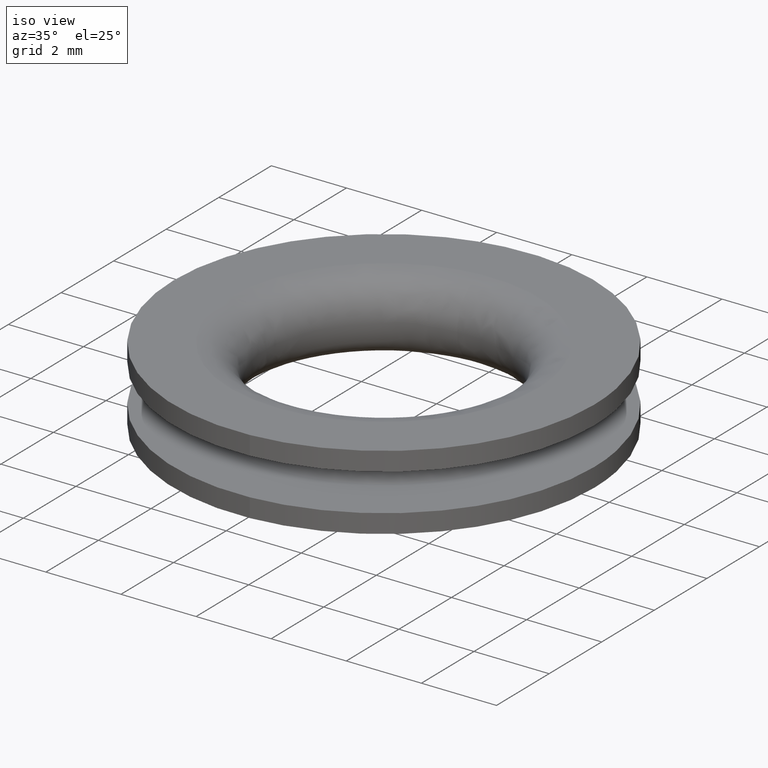
[diagram: clean part render]
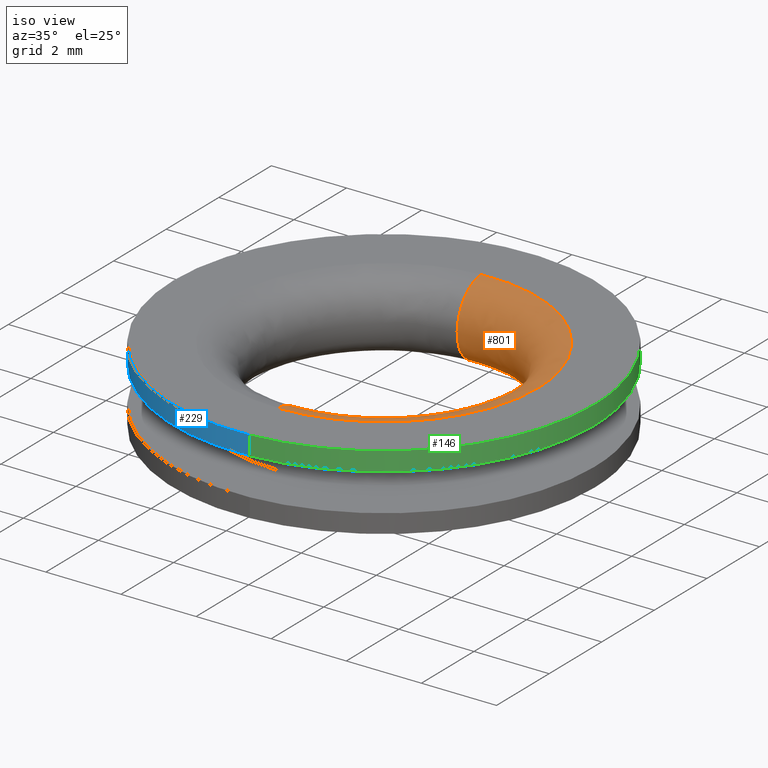
[diagram: same view with three faces highlighted in distinct colors, each labeled with its STEP entity id]
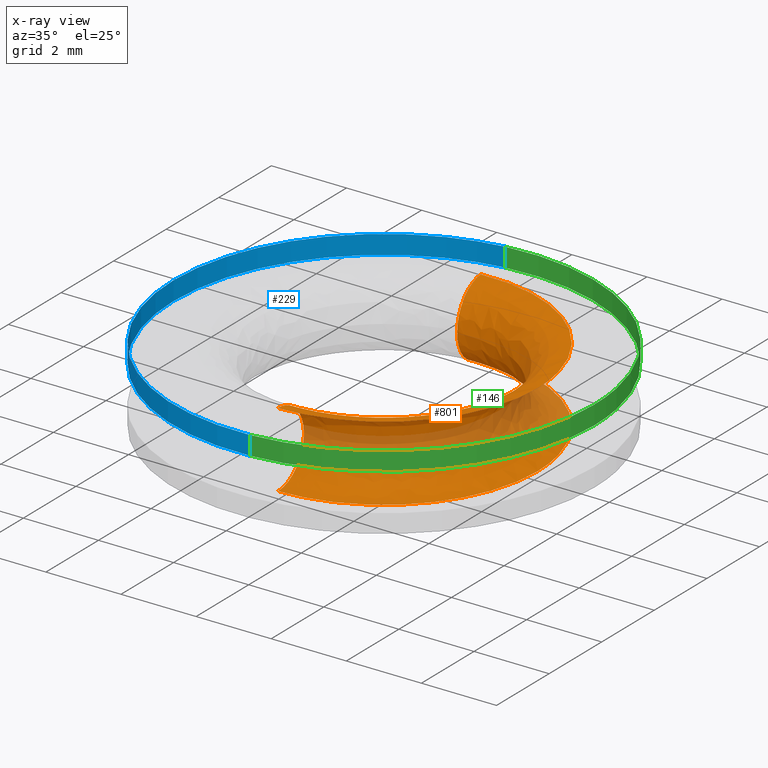
[diagram: x-ray of the same camera — body ghosted, the three highlighted faces saturated]
A machine part, iso view with three faces highlighted in distinct colors.
The next image is the same camera in x-ray (body ghosted, the three faces saturated) — at least one of them is partly hidden behind the body in this view.
Their STEP definitions:

[orange] entity #801 — the highlighted face is a freeform B-spline surface patch.
#658=CARTESIAN_POINT('',(-0.295804236483371,4.231616623863549,0.010125149930220));
#659=CARTESIAN_POINT('',(-0.174697303599710,4.240082405856291,0.010125149930220));
#660=CARTESIAN_POINT('',(-0.053304423413721,4.241607954081135,0.010125149930220));
#661=CARTESIAN_POINT('',(4.188303530667414,4.294912377494857,0.010125149930220));
#662=CARTESIAN_POINT('',(4.241607954081135,0.053304423413722,0.010125149930220));
#663=CARTESIAN_POINT('',(4.294912377494857,-4.188303530667414,0.010125149930220));
#664=CARTESIAN_POINT('',(0.053304423413718,-4.241607954081135,0.010125149930220));
#665=CARTESIAN_POINT('',(-0.216172909213191,3.092453600835798,-0.153623490866646));
#666=CARTESIAN_POINT('',(-0.127668301170435,3.098640370653203,-0.153623490866646));
#667=CARTESIAN_POINT('',(-0.038954723638394,3.099755237031830,-0.153623490866646));
#668=CARTESIAN_POINT('',(3.060800513393434,3.138709960670223,-0.153623490866646));
#669=CARTESIAN_POINT('',(3.099755237031830,0.038954723638394,-0.153623490866646));
#670=CARTESIAN_POINT('',(3.138709960670223,-3.060800513393434,-0.153623490866646));
#671=CARTESIAN_POINT('',(0.038954723638392,-3.099755237031830,-0.153623490866646));
#672=CARTESIAN_POINT('',(-0.216172909213191,3.092453600835801,1.000000000000000));
#673=CARTESIAN_POINT('',(-0.127668301170435,3.098640370653204,1.000000000000000));
#674=CARTESIAN_POINT('',(-0.038954723638394,3.099755237031829,1.000000000000000));
#675=CARTESIAN_POINT('',(3.060800513393435,3.138709960670223,1.000000000000000));
#676=CARTESIAN_POINT('',(3.099755237031829,0.038954723638394,1.000000000000000));
#677=CARTESIAN_POINT('',(3.138709960670223,-3.060800513393435,1.000000000000000));
#678=CARTESIAN_POINT('',(0.038954723638392,-3.099755237031829,1.000000000000000));
#679=CARTESIAN_POINT('',(-0.216172909213191,3.092453600835800,2.153623301951463));
#680=CARTESIAN_POINT('',(-0.127668301170435,3.098640370653203,2.153623301951462));
#681=CARTESIAN_POINT('',(-0.038954723638394,3.099755237031829,2.153623301951463));
#682=CARTESIAN_POINT('',(3.060800513393434,3.138709960670224,2.153623301951463));
#683=CARTESIAN_POINT('',(3.099755237031829,0.038954723638394,2.153623301951463));
#684=CARTESIAN_POINT('',(3.138709960670224,-3.060800513393434,2.153623301951463));
#685=CARTESIAN_POINT('',(0.038954723638392,-3.099755237031829,2.153623301951463));
#686=CARTESIAN_POINT('',(-0.295804225294069,4.231616463795408,1.989874873078713));
#687=CARTESIAN_POINT('',(-0.174697296991486,4.240082245467917,1.989874873078713));
#688=CARTESIAN_POINT('',(-0.053304421397390,4.241607793635057,1.989874873078713));
#689=CARTESIAN_POINT('',(4.188303372237666,4.294912215032449,1.989874873078713));
#690=CARTESIAN_POINT('',(4.241607793635057,0.053304421397391,1.989874873078713));
#691=CARTESIAN_POINT('',(4.294912215032449,-4.188303372237666,1.989874873078713));
#692=CARTESIAN_POINT('',(0.053304421397387,-4.241607793635057,1.989874873078713));
#700=(BOUNDED_SURFACE()B_SPLINE_SURFACE(2,2,((#658,#665,#672,#679,#686),(#659,#666,#673,#680,#687),(#660,#667,#674,#681,#688),(#661,#668,#675,#682,#689),(#662,#669,#676,#683,#690),(#663,#670,#677,#684,#691),(#664,#671,#678,#685,#692)),.UNSPECIFIED.,.F.,.F.,.U.)B_SPLINE_SURFACE_WITH_KNOTS((3,2,2,3),(3,2,3),(0.0,0.281130975369515,7.309412062298550,14.337693149227590),(0.0,1.826255915945001,3.652511637411089),.UNSPECIFIED.)GEOMETRIC_REPRESENTATION_ITEM()RATIONAL_B_SPLINE_SURFACE(((0.963494662627151,0.635663733925537,0.977505821353428,0.635663770328473,0.963494592805397),(0.974118629750981,0.642672875618779,0.988284282420452,0.642672912423112,0.974118559159338),(0.985666419145332,0.650291507262242,1.0,0.650291544502876,0.985666347716854),(0.696971408965526,0.459825534533153,0.707106781186548,0.459825560866257,0.696971358457965),(0.985666419145332,0.650291507262242,1.0,0.650291544502876,0.985666347716854),(0.696971408965526,0.459825534533153,0.707106781186548,0.459825560866257,0.696971358457965),(0.985666419145332,0.650291507262242,1.0,0.650291544502876,0.985666347716854)))REPRESENTATION_ITEM('')SURFACE());
#701=CARTESIAN_POINT('',(-0.285905240904226,4.090019318950484,5.493328E-016));
#702=VERTEX_POINT('',#701);
#703=CARTESIAN_POINT('',(4.100000000000001,0.0,0.0));
#704=VERTEX_POINT('',#703);
#705=CARTESIAN_POINT('',(-0.285905240904226,4.090019318950483,5.493328E-016));
#706=CARTESIAN_POINT('',(-0.143126828511218,4.100000000000001,0.0));
#707=CARTESIAN_POINT('',(0.0,4.100000000000001,0.0));
#708=CARTESIAN_POINT('',(4.100000000000001,4.100000000000001,0.0));
#709=CARTESIAN_POINT('',(4.100000000000001,0.0,0.0));
#717=(BOUNDED_CURVE()B_SPLINE_CURVE(2,(#705,#706,#707,#708,#709),.UNSPECIFIED.,.F.,.U.)B_SPLINE_CURVE_WITH_KNOTS((3,2,3),(0.237833732333640,0.250000000000000,0.500000000000000),.UNSPECIFIED.)CURVE()GEOMETRIC_REPRESENTATION_ITEM()RATIONAL_B_SPLINE_CURVE((0.972879973254873,0.985746330809015,1.0,0.707106781186547,1.0))REPRESENTATION_ITEM(''));
#718=EDGE_CURVE('',#702,#704,#717,.T.);
#719=ORIENTED_EDGE('',*,*,#718,.T.);
#720=CARTESIAN_POINT('',(0.051518769026480,-4.099674319610783,3.946466E-012));
#721=VERTEX_POINT('',#720);
#722=CARTESIAN_POINT('',(4.100000000000001,0.0,0.0));
#723=CARTESIAN_POINT('',(4.099999987519053,-4.048799864677521,1.973233E-012));
#724=CARTESIAN_POINT('',(0.051518769026480,-4.099674319610783,3.946466E-012));
#732=(BOUNDED_CURVE()B_SPLINE_CURVE(2,(#722,#723,#724),.UNSPECIFIED.,.F.,.U.)B_SPLINE_CURVE_WITH_KNOTS((3,3),(0.500000000000000,0.747784380410366),.UNSPECIFIED.)CURVE()GEOMETRIC_REPRESENTATION_ITEM()RATIONAL_B_SPLINE_CURVE((1.0,0.709702540999643,0.994854490104144))REPRESENTATION_ITEM(''));
#733=EDGE_CURVE('',#704,#721,#732,.T.);
#734=ORIENTED_EDGE('',*,*,#733,.T.);
#735=CARTESIAN_POINT('',(0.051520763526235,-4.099676281222010,2.0));
#736=VERTEX_POINT('',#735);
#737=CARTESIAN_POINT('',(0.051518769026480,-4.099674319610783,3.946466E-012));
#738=CARTESIAN_POINT('',(0.038952754106957,-3.099755261782994,0.000001986532888));
#739=CARTESIAN_POINT('',(0.038953738873623,-3.099755249414191,1.000000000000986));
#740=CARTESIAN_POINT('',(0.038954723642245,-3.099755237045362,1.999999999972842));
#741=CARTESIAN_POINT('',(0.051520763526235,-4.099676281222010,2.000000000000000));
#749=(BOUNDED_CURVE()B_SPLINE_CURVE(2,(#737,#738,#739,#740,#741),.UNSPECIFIED.,.F.,.U.)B_SPLINE_CURVE_WITH_KNOTS((3,2,3),(-3.781080124178481,-2.0,-0.218917462625159),.UNSPECIFIED.)CURVE()GEOMETRIC_REPRESENTATION_ITEM()RATIONAL_B_SPLINE_CURVE((0.930395460956461,0.682054729921889,1.0,0.682054299135897,0.930396133914253))REPRESENTATION_ITEM(''));
#750=EDGE_CURVE('',#721,#736,#749,.T.);
#751=ORIENTED_EDGE('',*,*,#750,.T.);
#752=CARTESIAN_POINT('',(4.100000000000001,0.0,2.0));
#753=VERTEX_POINT('',#752);
#754=CARTESIAN_POINT('',(4.100000000000001,0.0,2.0));
#755=CARTESIAN_POINT('',(4.100000000000001,-4.048798912610809,1.999999999999999));
#756=CARTESIAN_POINT('',(0.051520763526235,-4.099676281222010,2.0));
#764=(BOUNDED_CURVE()B_SPLINE_CURVE(2,(#754,#755,#756),.UNSPECIFIED.,.F.,.U.)B_SPLINE_CURVE_WITH_KNOTS((3,3),(0.500000000000000,0.747784295921329),.UNSPECIFIED.)CURVE()GEOMETRIC_REPRESENTATION_ITEM()RATIONAL_B_SPLINE_CURVE((1.0,0.709702639984707,0.994854295643094))REPRESENTATION_ITEM(''));
#765=EDGE_CURVE('',#753,#736,#764,.T.);
#766=ORIENTED_EDGE('',*,*,#765,.F.);
#767=CARTESIAN_POINT('',(-0.285905125439712,4.090017668716365,1.999999999997197));
#768=VERTEX_POINT('',#767);
#769=CARTESIAN_POINT('',(-0.285905125439712,4.090017668716365,1.999999999997197));
#770=CARTESIAN_POINT('',(-0.143126713607301,4.099998357012431,1.999999999997243));
#771=CARTESIAN_POINT('',(0.000000112812191,4.099998386164449,1.999999999997292));
#772=CARTESIAN_POINT('',(4.100000054437016,4.099999221250902,1.999999999998693));
#773=CARTESIAN_POINT('',(4.100000000000001,0.0,2.0));
#781=(BOUNDED_CURVE()B_SPLINE_CURVE(2,(#769,#770,#771,#772,#773),.UNSPECIFIED.,.F.,.U.)B_SPLINE_CURVE_WITH_KNOTS((3,2,3),(0.237833732338157,0.250000000000000,0.500000000000000),.UNSPECIFIED.)CURVE()GEOMETRIC_REPRESENTATION_ITEM()RATIONAL_B_SPLINE_CURVE((0.972879973264427,0.985746330814307,1.0,0.707106781186547,1.0))REPRESENTATION_ITEM(''));
#782=EDGE_CURVE('',#768,#753,#781,.T.);
#783=ORIENTED_EDGE('',*,*,#782,.F.);
#784=CARTESIAN_POINT('',(-0.285905240904226,4.090019318950484,5.493328E-016));
#785=CARTESIAN_POINT('',(-0.216171990722058,3.092453665041473,0.000000019980061));
#786=CARTESIAN_POINT('',(-0.216171990668566,3.092453665045213,0.999999999999299));
#787=CARTESIAN_POINT('',(-0.216171990615075,3.092453665048953,1.999998325751311));
#788=CARTESIAN_POINT('',(-0.285905125439712,4.090017668716365,1.999999999997197));
#796=(BOUNDED_CURVE()B_SPLINE_CURVE(2,(#784,#785,#786,#787,#788),.UNSPECIFIED.,.F.,.U.)B_SPLINE_CURVE_WITH_KNOTS((3,2,3),(-3.781082513136153,-2.0,-0.218919496460487),.UNSPECIFIED.)CURVE()GEOMETRIC_REPRESENTATION_ITEM()RATIONAL_B_SPLINE_CURVE((0.909467611331238,0.666712038092175,0.977505800795127,0.666712388760994,0.909467063529378))REPRESENTATION_ITEM(''));
#797=EDGE_CURVE('',#702,#768,#796,.T.);
#798=ORIENTED_EDGE('',*,*,#797,.F.);
#799=EDGE_LOOP('',(#719,#734,#751,#766,#783,#798));
#800=FACE_OUTER_BOUND('',#799,.T.);
#801=ADVANCED_FACE('',(#800),#700,.T.);

[blue] entity #229 — the highlighted face is a freeform B-spline surface patch.
#66=CARTESIAN_POINT('',(-0.660988172948716,5.560853768551120,1.500000000000061));
#67=VERTEX_POINT('',#66);
#85=CARTESIAN_POINT('',(-0.660988216627040,5.560853763359345,2.0));
#86=VERTEX_POINT('',#85);
#87=CARTESIAN_POINT('',(-0.660988216627040,5.560853763359345,2.0));
#88=CARTESIAN_POINT('',(-0.660988172948716,5.560853768551120,1.500000000000061));
#89=QUASI_UNIFORM_CURVE('',1,(#87,#88),.UNSPECIFIED.,.F.,.U.);
#90=EDGE_CURVE('',#86,#67,#89,.T.);
#109=CARTESIAN_POINT('',(0.341869845843835,-5.589554991991651,2.0));
#110=VERTEX_POINT('',#109);
#124=CARTESIAN_POINT('',(0.341869821183099,-5.589554993499949,1.500000000000040));
#125=VERTEX_POINT('',#124);
#126=CARTESIAN_POINT('',(0.341869845843835,-5.589554991991651,2.0));
#127=CARTESIAN_POINT('',(0.341869821183099,-5.589554993499949,1.500000000000040));
#128=QUASI_UNIFORM_CURVE('',1,(#126,#127),.UNSPECIFIED.,.F.,.U.);
#129=EDGE_CURVE('',#110,#125,#128,.T.);
#147=CARTESIAN_POINT('',(0.341871821395199,-5.589554871162453,2.012500000000000));
#148=CARTESIAN_POINT('',(-5.247683049767254,-5.931426692557652,2.012500000000000));
#149=CARTESIAN_POINT('',(-5.589554871162453,-0.341871821395199,2.012500000000000));
#150=CARTESIAN_POINT('',(-5.912402701702153,4.936643548701205,2.012500000000000));
#151=CARTESIAN_POINT('',(-0.660991714077847,5.560853347636532,2.012500000000001));
#152=CARTESIAN_POINT('',(0.341871821395199,-5.589554871162453,1.487187500000000));
#153=CARTESIAN_POINT('',(-5.247683049767254,-5.931426692557652,1.487187499999999));
#154=CARTESIAN_POINT('',(-5.589554871162453,-0.341871821395199,1.487187500000000));
#155=CARTESIAN_POINT('',(-5.912402701702153,4.936643548701205,1.487187500000000));
#156=CARTESIAN_POINT('',(-0.660991714077847,5.560853347636532,1.487187500000000));
#164=(BOUNDED_SURFACE()B_SPLINE_SURFACE(2,1,((#147,#152),(#148,#153),(#149,#154),(#150,#155),(#151,#156)),.UNSPECIFIED.,.F.,.F.,.U.)B_SPLINE_SURFACE_WITH_KNOTS((3,2,3),(2,2),(0.0,9.278383797157327,18.185632242428358),(0.0,1.0),.UNSPECIFIED.)GEOMETRIC_REPRESENTATION_ITEM()RATIONAL_B_SPLINE_SURFACE(((1.0,1.0),(0.707106781186548,0.707106781186548),(1.0,1.0),(0.718822509939086,0.718822509939086),(0.977505800795127,0.977505800795127)))REPRESENTATION_ITEM('')SURFACE());
#165=CARTESIAN_POINT('',(-5.600000000000000,0.0,1.500000000000000));
#166=VERTEX_POINT('',#165);
#167=CARTESIAN_POINT('',(-5.600000000000000,0.0,1.500000000000000));
#168=CARTESIAN_POINT('',(-5.600000000000000,4.973780534906465,1.500000000000000));
#169=CARTESIAN_POINT('',(-0.660988172948716,5.560853768551120,1.500000000000060));
#177=(BOUNDED_CURVE()B_SPLINE_CURVE(2,(#167,#168,#169),.UNSPECIFIED.,.F.,.U.)B_SPLINE_CURVE_WITH_KNOTS((3,3),(0.0,0.229562581136241),.UNSPECIFIED.)CURVE()GEOMETRIC_REPRESENTATION_ITEM()RATIONAL_B_SPLINE_CURVE((1.0,0.731050706767529,0.956026965128767))REPRESENTATION_ITEM(''));
#178=EDGE_CURVE('',#166,#67,#177,.T.);
#179=ORIENTED_EDGE('',*,*,#178,.F.);
#180=CARTESIAN_POINT('',(0.341869821183099,-5.589554993499949,1.500000000000040));
#181=CARTESIAN_POINT('',(0.171094471561875,-5.600000000000000,1.500000000000000));
#182=CARTESIAN_POINT('',(0.0,-5.600000000000000,1.500000000000000));
#183=CARTESIAN_POINT('',(-5.599999999999999,-5.599999999999999,1.500000000000000));
#184=CARTESIAN_POINT('',(-5.600000000000000,0.0,1.500000000000000));
#192=(BOUNDED_CURVE()B_SPLINE_CURVE(2,(#180,#181,#182,#183,#184),.UNSPECIFIED.,.F.,.U.)B_SPLINE_CURVE_WITH_KNOTS((3,2,3),(0.739333023987528,0.750000000000000,1.0),.UNSPECIFIED.)CURVE()GEOMETRIC_REPRESENTATION_ITEM()RATIONAL_B_SPLINE_CURVE((0.976072174005725,0.987502860242804,1.0,0.707106781186547,1.0))REPRESENTATION_ITEM(''));
#193=EDGE_CURVE('',#125,#166,#192,.T.);
#194=ORIENTED_EDGE('',*,*,#193,.F.);
#195=ORIENTED_EDGE('',*,*,#129,.F.);
#196=CARTESIAN_POINT('',(-5.600000000000000,0.0,2.0));
#197=VERTEX_POINT('',#196);
#198=CARTESIAN_POINT('',(0.341869845843835,-5.589554991991651,2.0));
#199=CARTESIAN_POINT('',(0.171094483926815,-5.600000000000000,2.000000000000000));
#200=CARTESIAN_POINT('',(0.0,-5.600000000000000,2.0));
#201=CARTESIAN_POINT('',(-5.599999999999999,-5.599999999999999,2.0));
#202=CARTESIAN_POINT('',(-5.600000000000000,0.0,2.0));
#210=(BOUNDED_CURVE()B_SPLINE_CURVE(2,(#198,#199,#200,#201,#202),.UNSPECIFIED.,.F.,.U.)B_SPLINE_CURVE_WITH_KNOTS((3,2,3),(0.739333023226263,0.750000000000000,1.0),.UNSPECIFIED.)CURVE()GEOMETRIC_REPRESENTATION_ITEM()RATIONAL_B_SPLINE_CURVE((0.976072172374189,0.987502859350927,1.0,0.707106781186547,1.0))REPRESENTATION_ITEM(''));
#211=EDGE_CURVE('',#110,#197,#210,.T.);
#212=ORIENTED_EDGE('',*,*,#211,.T.);
#213=CARTESIAN_POINT('',(-5.600000000000000,0.0,2.0));
#214=CARTESIAN_POINT('',(-5.599999999999999,4.973780495564358,2.000000000000000));
#215=CARTESIAN_POINT('',(-0.660988216627040,5.560853763359345,2.000000000000000));
#223=(BOUNDED_CURVE()B_SPLINE_CURVE(2,(#213,#214,#215),.UNSPECIFIED.,.F.,.U.)B_SPLINE_CURVE_WITH_KNOTS((3,3),(0.0,0.229562579808786),.UNSPECIFIED.)CURVE()GEOMETRIC_REPRESENTATION_ITEM()RATIONAL_B_SPLINE_CURVE((1.0,0.731050708322738,0.956026962526900))REPRESENTATION_ITEM(''));
#224=EDGE_CURVE('',#197,#86,#223,.T.);
#225=ORIENTED_EDGE('',*,*,#224,.T.);
#226=ORIENTED_EDGE('',*,*,#90,.T.);
#227=EDGE_LOOP('',(#179,#194,#195,#212,#225,#226));
#228=FACE_OUTER_BOUND('',#227,.T.);
#229=ADVANCED_FACE('',(#228),#164,.T.);

[green] entity #146 — the highlighted face is a freeform B-spline surface patch.
#44=CARTESIAN_POINT('',(-0.660991714077847,5.560853347636532,2.012500000000001));
#45=CARTESIAN_POINT('',(-0.501842480372675,5.579770646512191,2.012500000000000));
#46=CARTESIAN_POINT('',(-0.341871821395199,5.589554871162453,2.012500000000000));
#47=CARTESIAN_POINT('',(5.247683049767254,5.931426692557652,2.012500000000000));
#48=CARTESIAN_POINT('',(5.589554871162453,0.341871821395199,2.012500000000000));
#49=CARTESIAN_POINT('',(5.931426692557652,-5.247683049767254,2.012500000000000));
#50=CARTESIAN_POINT('',(0.341871821395199,-5.589554871162453,2.012500000000000));
#51=CARTESIAN_POINT('',(-0.660991714077847,5.560853347636532,1.487187500000000));
#52=CARTESIAN_POINT('',(-0.501842480372675,5.579770646512191,1.487187499999999));
#53=CARTESIAN_POINT('',(-0.341871821395199,5.589554871162453,1.487187500000000));
#54=CARTESIAN_POINT('',(5.247683049767254,5.931426692557652,1.487187499999999));
#55=CARTESIAN_POINT('',(5.589554871162453,0.341871821395199,1.487187500000000));
#56=CARTESIAN_POINT('',(5.931426692557652,-5.247683049767254,1.487187499999999));
#57=CARTESIAN_POINT('',(0.341871821395199,-5.589554871162453,1.487187500000000));
#65=(BOUNDED_SURFACE()B_SPLINE_SURFACE(2,1,((#44,#51),(#45,#52),(#46,#53),(#47,#54),(#48,#55),(#49,#56),(#50,#57)),.UNSPECIFIED.,.F.,.F.,.U.)B_SPLINE_SURFACE_WITH_KNOTS((3,2,2,3),(2,2),(0.0,0.371135351886293,9.649519149043620,18.927902946200948),(0.0,1.0),.UNSPECIFIED.)GEOMETRIC_REPRESENTATION_ITEM()RATIONAL_B_SPLINE_SURFACE(((0.977505800795127,0.977505800795127),(0.988284271247462,0.988284271247462),(1.0,1.0),(0.707106781186548,0.707106781186548),(1.0,1.0),(0.707106781186548,0.707106781186548),(1.0,1.0)))REPRESENTATION_ITEM('')SURFACE());
#66=CARTESIAN_POINT('',(-0.660988172948716,5.560853768551120,1.500000000000061));
#67=VERTEX_POINT('',#66);
#68=CARTESIAN_POINT('',(5.600000000000000,0.0,1.500000000000000));
#69=VERTEX_POINT('',#68);
#70=CARTESIAN_POINT('',(-0.660988172948716,5.560853768551120,1.500000000000060));
#71=CARTESIAN_POINT('',(-0.331653280768118,5.600000000000001,1.500000000000000));
#72=CARTESIAN_POINT('',(0.0,5.600000000000000,1.500000000000000));
#73=CARTESIAN_POINT('',(5.599999999999999,5.599999999999999,1.500000000000000));
#74=CARTESIAN_POINT('',(5.600000000000000,0.0,1.500000000000000));
#82=(BOUNDED_CURVE()B_SPLINE_CURVE(2,(#70,#71,#72,#73,#74),.UNSPECIFIED.,.F.,.U.)B_SPLINE_CURVE_WITH_KNOTS((3,2,3),(0.229562581136241,0.250000000000000,0.500000000000000),.UNSPECIFIED.)CURVE()GEOMETRIC_REPRESENTATION_ITEM()RATIONAL_B_SPLINE_CURVE((0.956026965128767,0.976056074419019,1.0,0.707106781186547,1.0))REPRESENTATION_ITEM(''));
#83=EDGE_CURVE('',#67,#69,#82,.T.);
#84=ORIENTED_EDGE('',*,*,#83,.F.);
#85=CARTESIAN_POINT('',(-0.660988216627040,5.560853763359345,2.0));
#86=VERTEX_POINT('',#85);
#87=CARTESIAN_POINT('',(-0.660988216627040,5.560853763359345,2.0));
#88=CARTESIAN_POINT('',(-0.660988172948716,5.560853768551120,1.500000000000061));
#89=QUASI_UNIFORM_CURVE('',1,(#87,#88),.UNSPECIFIED.,.F.,.U.);
#90=EDGE_CURVE('',#86,#67,#89,.T.);
#91=ORIENTED_EDGE('',*,*,#90,.F.);
#92=CARTESIAN_POINT('',(5.600000000000000,0.0,2.0));
#93=VERTEX_POINT('',#92);
#94=CARTESIAN_POINT('',(-0.660988216627040,5.560853763359345,2.000000000000000));
#95=CARTESIAN_POINT('',(-0.331653302838156,5.600000000000000,2.000000000000000));
#96=CARTESIAN_POINT('',(0.0,5.600000000000000,2.0));
#97=CARTESIAN_POINT('',(5.599999999999999,5.599999999999999,2.0));
#98=CARTESIAN_POINT('',(5.600000000000000,0.0,2.0));
#106=(BOUNDED_CURVE()B_SPLINE_CURVE(2,(#94,#95,#96,#97,#98),.UNSPECIFIED.,.F.,.U.)B_SPLINE_CURVE_WITH_KNOTS((3,2,3),(0.229562579808786,0.250000000000000,0.500000000000000),.UNSPECIFIED.)CURVE()GEOMETRIC_REPRESENTATION_ITEM()RATIONAL_B_SPLINE_CURVE((0.956026962526900,0.976056072863809,1.0,0.707106781186547,1.0))REPRESENTATION_ITEM(''));
#107=EDGE_CURVE('',#86,#93,#106,.T.);
#108=ORIENTED_EDGE('',*,*,#107,.T.);
#109=CARTESIAN_POINT('',(0.341869845843835,-5.589554991991651,2.0));
#110=VERTEX_POINT('',#109);
#111=CARTESIAN_POINT('',(5.600000000000000,0.0,2.0));
#112=CARTESIAN_POINT('',(5.600000000000000,-5.267955840037390,2.0));
#113=CARTESIAN_POINT('',(0.341869845843835,-5.589554991991651,2.0));
#121=(BOUNDED_CURVE()B_SPLINE_CURVE(2,(#111,#112,#113),.UNSPECIFIED.,.F.,.U.)B_SPLINE_CURVE_WITH_KNOTS((3,3),(0.500000000000000,0.739333023226263),.UNSPECIFIED.)CURVE()GEOMETRIC_REPRESENTATION_ITEM()RATIONAL_B_SPLINE_CURVE((1.0,0.719603921835620,0.976072172374189))REPRESENTATION_ITEM(''));
#122=EDGE_CURVE('',#93,#110,#121,.T.);
#123=ORIENTED_EDGE('',*,*,#122,.T.);
#124=CARTESIAN_POINT('',(0.341869821183099,-5.589554993499949,1.500000000000040));
#125=VERTEX_POINT('',#124);
#126=CARTESIAN_POINT('',(0.341869845843835,-5.589554991991651,2.0));
#127=CARTESIAN_POINT('',(0.341869821183099,-5.589554993499949,1.500000000000040));
#128=QUASI_UNIFORM_CURVE('',1,(#126,#127),.UNSPECIFIED.,.F.,.U.);
#129=EDGE_CURVE('',#110,#125,#128,.T.);
#130=ORIENTED_EDGE('',*,*,#129,.T.);
#131=CARTESIAN_POINT('',(5.600000000000000,0.0,1.500000000000000));
#132=CARTESIAN_POINT('',(5.600000000000001,-5.267955863322681,1.499999999999999));
#133=CARTESIAN_POINT('',(0.341869821183099,-5.589554993499949,1.500000000000040));
#141=(BOUNDED_CURVE()B_SPLINE_CURVE(2,(#131,#132,#133),.UNSPECIFIED.,.F.,.U.)B_SPLINE_CURVE_WITH_KNOTS((3,3),(0.500000000000000,0.739333023987528),.UNSPECIFIED.)CURVE()GEOMETRIC_REPRESENTATION_ITEM()RATIONAL_B_SPLINE_CURVE((1.0,0.719603920943743,0.976072174005725))REPRESENTATION_ITEM(''));
#142=EDGE_CURVE('',#69,#125,#141,.T.);
#143=ORIENTED_EDGE('',*,*,#142,.F.);
#144=EDGE_LOOP('',(#84,#91,#108,#123,#130,#143));
#145=FACE_OUTER_BOUND('',#144,.T.);
#146=ADVANCED_FACE('',(#145),#65,.T.);